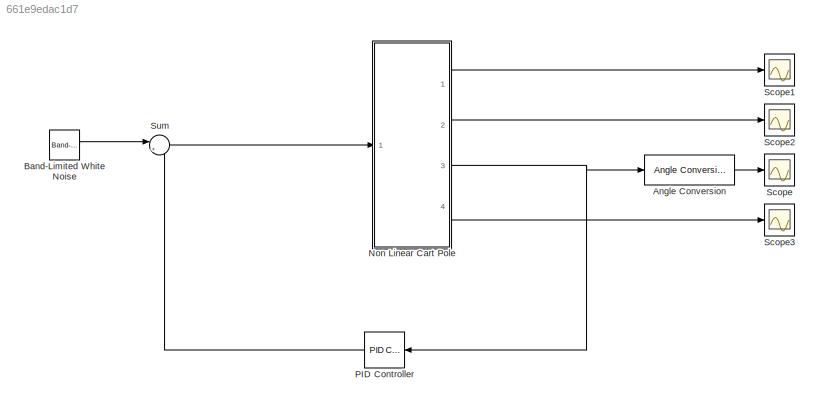
MODEL slx_661e9edac1d7
KIND model
CONFIG AbsTol = auto
CONFIG FixedStep = auto
CONFIG MaxStep = auto
CONFIG MinStep = auto
CONFIG RelTol = 1e-3
CONFIG SampleTimeConstraint = Unconstrained
CONFIG Solver = VariableStepAuto
CONFIG SolverMode = Auto
CONFIG SolverName = VariableStepAuto
CONFIG StartTime = 0.0
CONFIG StopTime = 10.0
BLOCK [Reference] Angle Conversion  REF=aerolibconvert2/Angle Conversion
  Ports = [1, 1]
  SourceBlock = aerolibconvert2/Angle Conversion
  SourceType = Angle Conversion
BLOCK [Reference] Band-Limited White Noise  REF=simulink/Sources/Band-Limited
White Noise
  Ports = [0, 1]
  SourceBlock = simulink/Sources/Band-Limited\nWhite Noise
  SourceType = Band-Limited White Noise.
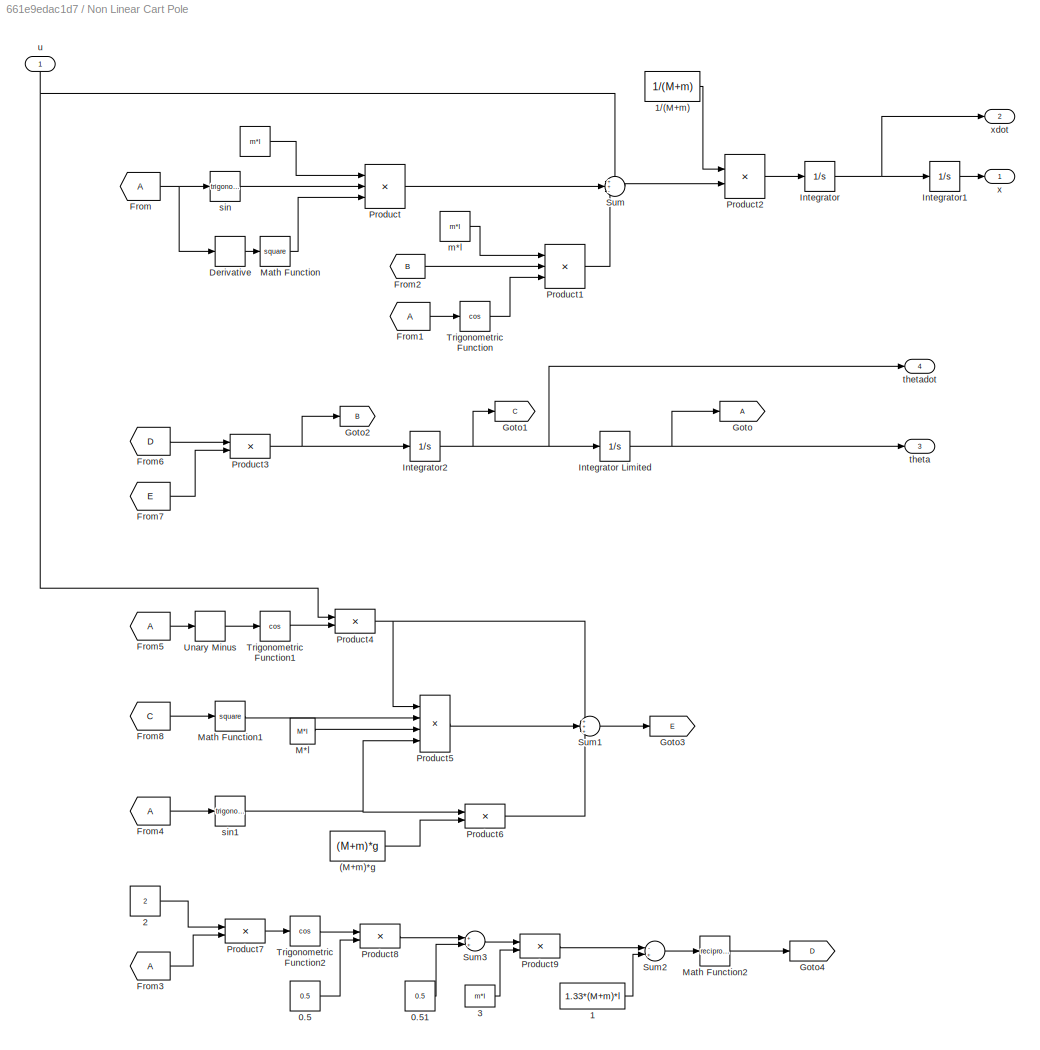
BLOCK [SubSystem] Non Linear Cart Pole
  Ports = [1, 4]
  RequestExecContextInheritance = off
  Variant = off
BLOCK [Constant] Non Linear Cart Pole/ 
  Value = m*l
BLOCK [Constant] Non Linear Cart Pole/(M+m)*g
  Value = (M+m)*g
BLOCK [Constant] Non Linear Cart Pole/0.5
  Value = 0.5
BLOCK [Constant] Non Linear Cart Pole/0.51
  Value = 0.5
BLOCK [Constant] Non Linear Cart Pole/1
  Value = 1.33*(M+m)*l
BLOCK [Constant] Non Linear Cart Pole/1//(M+m)
  Value = 1/(M+m)
BLOCK [Constant] Non Linear Cart Pole/2
  Value = 2
BLOCK [Constant] Non Linear Cart Pole/3
  Value = m*l
BLOCK [Derivative] Non Linear Cart Pole/Derivative
BLOCK [From] Non Linear Cart Pole/From
BLOCK [From] Non Linear Cart Pole/From1
BLOCK [From] Non Linear Cart Pole/From2
  GotoTag = B
BLOCK [From] Non Linear Cart Pole/From3
BLOCK [From] Non Linear Cart Pole/From4
BLOCK [From] Non Linear Cart Pole/From5
BLOCK [From] Non Linear Cart Pole/From6
  GotoTag = D
BLOCK [From] Non Linear Cart Pole/From7
  GotoTag = E
BLOCK [From] Non Linear Cart Pole/From8
  GotoTag = C
BLOCK [Goto] Non Linear Cart Pole/Goto
BLOCK [Goto] Non Linear Cart Pole/Goto1
  GotoTag = C
BLOCK [Goto] Non Linear Cart Pole/Goto2
  GotoTag = B
BLOCK [Goto] Non Linear Cart Pole/Goto3
  GotoTag = E
BLOCK [Goto] Non Linear Cart Pole/Goto4
  GotoTag = D
BLOCK [Integrator] Non Linear Cart Pole/Integrator
  Ports = [1, 1]
BLOCK [Integrator] Non Linear Cart Pole/Integrator Limited
  LimitOutput = on
  LowerSaturationLimit = -0.5*pi
  Ports = [1, 1]
  UpperSaturationLimit = 0.5*pi
BLOCK [Integrator] Non Linear Cart Pole/Integrator1
  Ports = [1, 1]
BLOCK [Integrator] Non Linear Cart Pole/Integrator2
  Ports = [1, 1]
BLOCK [Constant] Non Linear Cart Pole/M*l
  Value = M*l
BLOCK [Math] Non Linear Cart Pole/Math Function
  Operator = square
  Ports = [1, 1]
BLOCK [Math] Non Linear Cart Pole/Math Function1
  Operator = square
  Ports = [1, 1]
BLOCK [Math] Non Linear Cart Pole/Math Function2
  Operator = reciprocal
  Ports = [1, 1]
BLOCK [Product] Non Linear Cart Pole/Product
  InputSameDT = off
  Inputs = 3
  OutDataTypeStr = Inherit: Inherit via internal rule
  Ports = [3, 1]
  RndMeth = Floor
  SaturateOnIntegerOverflow = off
BLOCK [Product] Non Linear Cart Pole/Product1
  InputSameDT = off
  Inputs = 3
  OutDataTypeStr = Inherit: Inherit via internal rule
  Ports = [3, 1]
  RndMeth = Floor
  SaturateOnIntegerOverflow = off
BLOCK [Product] Non Linear Cart Pole/Product2
  InputSameDT = off
  OutDataTypeStr = Inherit: Inherit via internal rule
  Ports = [2, 1]
  RndMeth = Floor
  SaturateOnIntegerOverflow = off
BLOCK [Product] Non Linear Cart Pole/Product3
  InputSameDT = off
  OutDataTypeStr = Inherit: Inherit via internal rule
  Ports = [2, 1]
  RndMeth = Floor
  SaturateOnIntegerOverflow = off
BLOCK [Product] Non Linear Cart Pole/Product4
  InputSameDT = off
  OutDataTypeStr = Inherit: Inherit via internal rule
  Ports = [2, 1]
  RndMeth = Floor
  SaturateOnIntegerOverflow = off
BLOCK [Product] Non Linear Cart Pole/Product5
  InputSameDT = off
  Inputs = 4
  OutDataTypeStr = Inherit: Inherit via internal rule
  Ports = [4, 1]
  RndMeth = Floor
  SaturateOnIntegerOverflow = off
BLOCK [Product] Non Linear Cart Pole/Product6
  InputSameDT = off
  OutDataTypeStr = Inherit: Inherit via internal rule
  Ports = [2, 1]
  RndMeth = Floor
  SaturateOnIntegerOverflow = off
BLOCK [Product] Non Linear Cart Pole/Product7
  InputSameDT = off
  OutDataTypeStr = Inherit: Inherit via internal rule
  Ports = [2, 1]
  RndMeth = Floor
  SaturateOnIntegerOverflow = off
BLOCK [Product] Non Linear Cart Pole/Product8
  InputSameDT = off
  OutDataTypeStr = Inherit: Inherit via internal rule
  Ports = [2, 1]
  RndMeth = Floor
  SaturateOnIntegerOverflow = off
BLOCK [Product] Non Linear Cart Pole/Product9
  InputSameDT = off
  OutDataTypeStr = Inherit: Inherit via internal rule
  Ports = [2, 1]
  RndMeth = Floor
  SaturateOnIntegerOverflow = off
BLOCK [Sum] Non Linear Cart Pole/Sum
  IconShape = round
  InputSameDT = off
  Inputs = ++-
  OutDataTypeStr = Inherit: Inherit via internal rule
  Ports = [3, 1]
  SaturateOnIntegerOverflow = off
BLOCK [Sum] Non Linear Cart Pole/Sum1
  IconShape = round
  InputSameDT = off
  Inputs = +++
  OutDataTypeStr = Inherit: Inherit via internal rule
  Ports = [3, 1]
  SaturateOnIntegerOverflow = off
BLOCK [Sum] Non Linear Cart Pole/Sum2
  InputSameDT = off
  Inputs = -+
  OutDataTypeStr = Inherit: Inherit via internal rule
  Ports = [2, 1]
  SaturateOnIntegerOverflow = off
BLOCK [Sum] Non Linear Cart Pole/Sum3
  InputSameDT = off
  OutDataTypeStr = Inherit: Inherit via internal rule
  Ports = [2, 1]
  SaturateOnIntegerOverflow = off
BLOCK [Trigonometry] Non Linear Cart Pole/Trigonometric Function
  Operator = cos
  Ports = [1, 1]
BLOCK [Trigonometry] Non Linear Cart Pole/Trigonometric Function1
  Operator = cos
  Ports = [1, 1]
BLOCK [Trigonometry] Non Linear Cart Pole/Trigonometric Function2
  Operator = cos
  Ports = [1, 1]
BLOCK [UnaryMinus] Non Linear Cart Pole/Unary Minus
BLOCK [Constant] Non Linear Cart Pole/m*l
  Value = m*l
BLOCK [Trigonometry] Non Linear Cart Pole/sin
  Ports = [1, 1]
BLOCK [Trigonometry] Non Linear Cart Pole/sin1
  Ports = [1, 1]
BLOCK [Outport] Non Linear Cart Pole/theta
  IconDisplay = Port number
  Port = 3
BLOCK [Outport] Non Linear Cart Pole/thetadot
  IconDisplay = Port number
  Port = 4
BLOCK [Inport] Non Linear Cart Pole/u
  IconDisplay = Port number
BLOCK [Outport] Non Linear Cart Pole/x
  IconDisplay = Port number
BLOCK [Outport] Non Linear Cart Pole/xdot
  IconDisplay = Port number
  Port = 2
BLOCK [Reference] PID Controller  REF=simulink/Continuous/PID Controller
  Ports = [1, 1]
  SourceBlock = simulink/Continuous/PID Controller
  SourceType = PID 1dof
BLOCK [Scope] Scope
  Ports = [1]
  ScopeSpecificationString = Simulink.scopes.TimeScopeBlockCfg('CurrentConfiguration', extmgr.ConfigurationSet(extmgr.Configuration('Core','General UI',true),extmgr.Configuration('Core','Source UI',true),extmgr.Configuration('Sources','WiredSimulink',true,'DataLoggingSaveFormat','Array','DataLoggingDecimation','1','DataLoggingDecimateData',true),extmgr.Configuration('Visuals','Time Domain',true,'SerializedDisplays',{struct('M...<+1509ch>
BLOCK [Scope] Scope1
  Ports = [1]
  ScopeSpecificationString = C++SS(StrPVP('SaveName','ScopeData'),StrPVP('SaveName','ScopeData1'),StrPVP('LimitDataPoints','on'),StrPVP('DataFormat','Array'),StrPVP('Decimation','1'),StrPVP('BlockParamSampleInput','off'))
BLOCK [Scope] Scope2
  Ports = [1]
  ScopeSpecificationString = C++SS(StrPVP('SaveName','ScopeData'),StrPVP('SaveName','ScopeData2'),StrPVP('LimitDataPoints','on'),StrPVP('DataFormat','Array'),StrPVP('Decimation','1'),StrPVP('BlockParamSampleInput','off'))
BLOCK [Scope] Scope3
  Ports = [1]
  ScopeSpecificationString = Simulink.scopes.TimeScopeBlockCfg('CurrentConfiguration', extmgr.ConfigurationSet(extmgr.Configuration('Core','General UI',true),extmgr.Configuration('Core','Source UI',true),extmgr.Configuration('Sources','WiredSimulink',true,'DataLoggingVariableName','ScopeData3','DataLoggingLimitDataPoints',true,'DataLoggingSaveFormat','Array','DataLoggingDecimation','1','DataLoggingDecimateData',true),extmgr.C...<+1506ch>
BLOCK [Sum] Sum
  IconShape = round
  InputSameDT = off
  Inputs = |++
  OutDataTypeStr = Inherit: Inherit via internal rule
  Ports = [2, 1]
  SaturateOnIntegerOverflow = off
LINE Angle Conversion:1 -> Scope:1
LINE Band-Limited White Noise:1 -> Sum:1
LINE Non Linear Cart Pole/ :1 -> Non Linear Cart Pole/Product:1
LINE Non Linear Cart Pole/(M+m)*g:1 -> Non Linear Cart Pole/Product6:2
LINE Non Linear Cart Pole/0.51:1 -> Non Linear Cart Pole/Sum3:2
LINE Non Linear Cart Pole/0.5:1 -> Non Linear Cart Pole/Product8:2
LINE Non Linear Cart Pole/1//(M+m):1 -> Non Linear Cart Pole/Product2:1
LINE Non Linear Cart Pole/1:1 -> Non Linear Cart Pole/Sum2:2
LINE Non Linear Cart Pole/2:1 -> Non Linear Cart Pole/Product7:1
LINE Non Linear Cart Pole/3:1 -> Non Linear Cart Pole/Product9:2
LINE Non Linear Cart Pole/Derivative:1 -> Non Linear Cart Pole/Math Function:1
LINE Non Linear Cart Pole/From1:1 -> Non Linear Cart Pole/Trigonometric Function:1
LINE Non Linear Cart Pole/From2:1 -> Non Linear Cart Pole/Product1:2
LINE Non Linear Cart Pole/From3:1 -> Non Linear Cart Pole/Product7:2
LINE Non Linear Cart Pole/From4:1 -> Non Linear Cart Pole/sin1:1
LINE Non Linear Cart Pole/From5:1 -> Non Linear Cart Pole/Unary Minus:1
LINE Non Linear Cart Pole/From6:1 -> Non Linear Cart Pole/Product3:1
LINE Non Linear Cart Pole/From7:1 -> Non Linear Cart Pole/Product3:2
LINE Non Linear Cart Pole/From8:1 -> Non Linear Cart Pole/Math Function1:1
NET Non Linear Cart Pole/From:1 -> Non Linear Cart Pole/Derivative:1, Non Linear Cart Pole/sin:1
NET Non Linear Cart Pole/Integrator Limited:1 -> Non Linear Cart Pole/Goto:1, Non Linear Cart Pole/theta:1
LINE Non Linear Cart Pole/Integrator1:1 -> Non Linear Cart Pole/x:1
NET Non Linear Cart Pole/Integrator2:1 -> Non Linear Cart Pole/Goto1:1, Non Linear Cart Pole/Integrator Limited:1, Non Linear Cart Pole/thetadot:1
NET Non Linear Cart Pole/Integrator:1 -> Non Linear Cart Pole/Integrator1:1, Non Linear Cart Pole/xdot:1
LINE Non Linear Cart Pole/M*l:1 -> Non Linear Cart Pole/Product5:3
LINE Non Linear Cart Pole/Math Function1:1 -> Non Linear Cart Pole/Product5:2
LINE Non Linear Cart Pole/Math Function2:1 -> Non Linear Cart Pole/Goto4:1
LINE Non Linear Cart Pole/Math Function:1 -> Non Linear Cart Pole/Product:3
LINE Non Linear Cart Pole/Product1:1 -> Non Linear Cart Pole/Sum:3
LINE Non Linear Cart Pole/Product2:1 -> Non Linear Cart Pole/Integrator:1
NET Non Linear Cart Pole/Product3:1 -> Non Linear Cart Pole/Goto2:1, Non Linear Cart Pole/Integrator2:1
NET Non Linear Cart Pole/Product4:1 -> Non Linear Cart Pole/Product5:1, Non Linear Cart Pole/Sum1:1
LINE Non Linear Cart Pole/Product5:1 -> Non Linear Cart Pole/Sum1:2
LINE Non Linear Cart Pole/Product6:1 -> Non Linear Cart Pole/Sum1:3
LINE Non Linear Cart Pole/Product7:1 -> Non Linear Cart Pole/Trigonometric Function2:1
LINE Non Linear Cart Pole/Product8:1 -> Non Linear Cart Pole/Sum3:1
LINE Non Linear Cart Pole/Product9:1 -> Non Linear Cart Pole/Sum2:1
LINE Non Linear Cart Pole/Product:1 -> Non Linear Cart Pole/Sum:2
LINE Non Linear Cart Pole/Sum1:1 -> Non Linear Cart Pole/Goto3:1
LINE Non Linear Cart Pole/Sum2:1 -> Non Linear Cart Pole/Math Function2:1
LINE Non Linear Cart Pole/Sum3:1 -> Non Linear Cart Pole/Product9:1
LINE Non Linear Cart Pole/Sum:1 -> Non Linear Cart Pole/Product2:2
LINE Non Linear Cart Pole/Trigonometric Function1:1 -> Non Linear Cart Pole/Product4:2
LINE Non Linear Cart Pole/Trigonometric Function2:1 -> Non Linear Cart Pole/Product8:1
LINE Non Linear Cart Pole/Trigonometric Function:1 -> Non Linear Cart Pole/Product1:3
LINE Non Linear Cart Pole/Unary Minus:1 -> Non Linear Cart Pole/Trigonometric Function1:1
LINE Non Linear Cart Pole/m*l:1 -> Non Linear Cart Pole/Product1:1
NET Non Linear Cart Pole/sin1:1 -> Non Linear Cart Pole/Product5:4, Non Linear Cart Pole/Product6:1
LINE Non Linear Cart Pole/sin:1 -> Non Linear Cart Pole/Product:2
NET Non Linear Cart Pole/u:1 -> Non Linear Cart Pole/Product4:1, Non Linear Cart Pole/Sum:1
LINE Non Linear Cart Pole:1 -> Scope1:1
LINE Non Linear Cart Pole:2 -> Scope2:1
NET Non Linear Cart Pole:3 -> Angle Conversion:1, PID Controller:1
LINE Non Linear Cart Pole:4 -> Scope3:1
LINE PID Controller:1 -> Sum:2
LINE Sum:1 -> Non Linear Cart Pole:1
note: NET lines group one-source signal fan-out (src -> all destinations, sorted); 1:1 wires keep LINE
